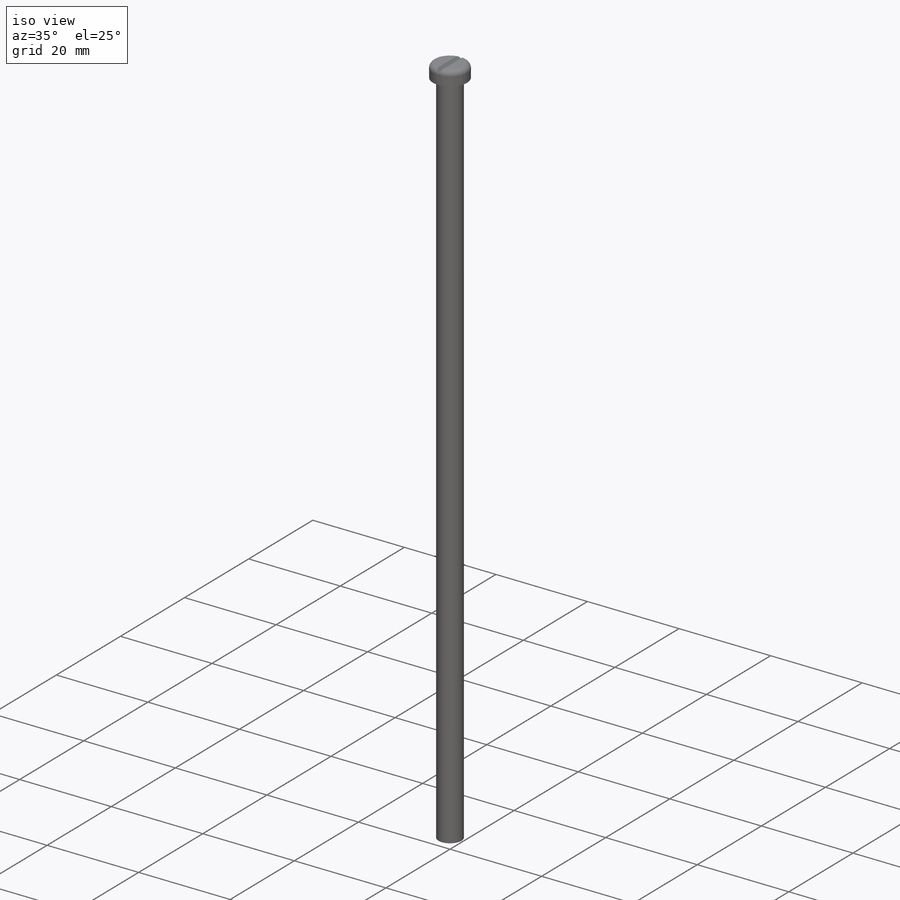
[diagram: iso view]
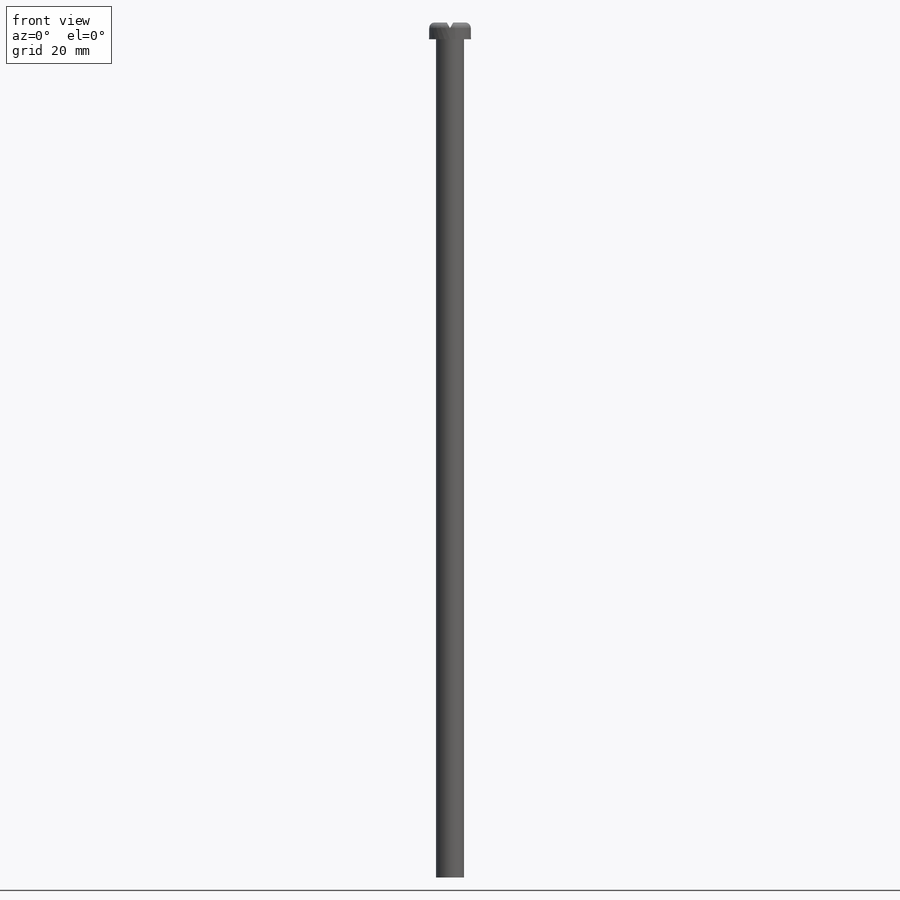
[diagram: front view]
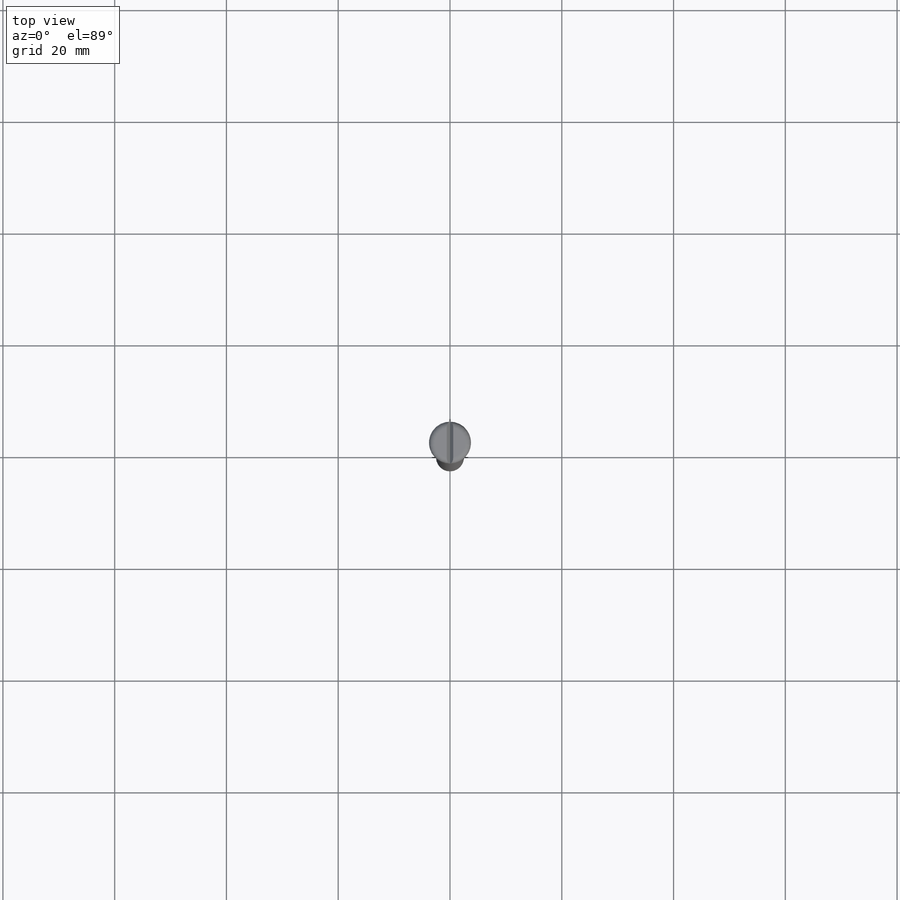
[diagram: top view]
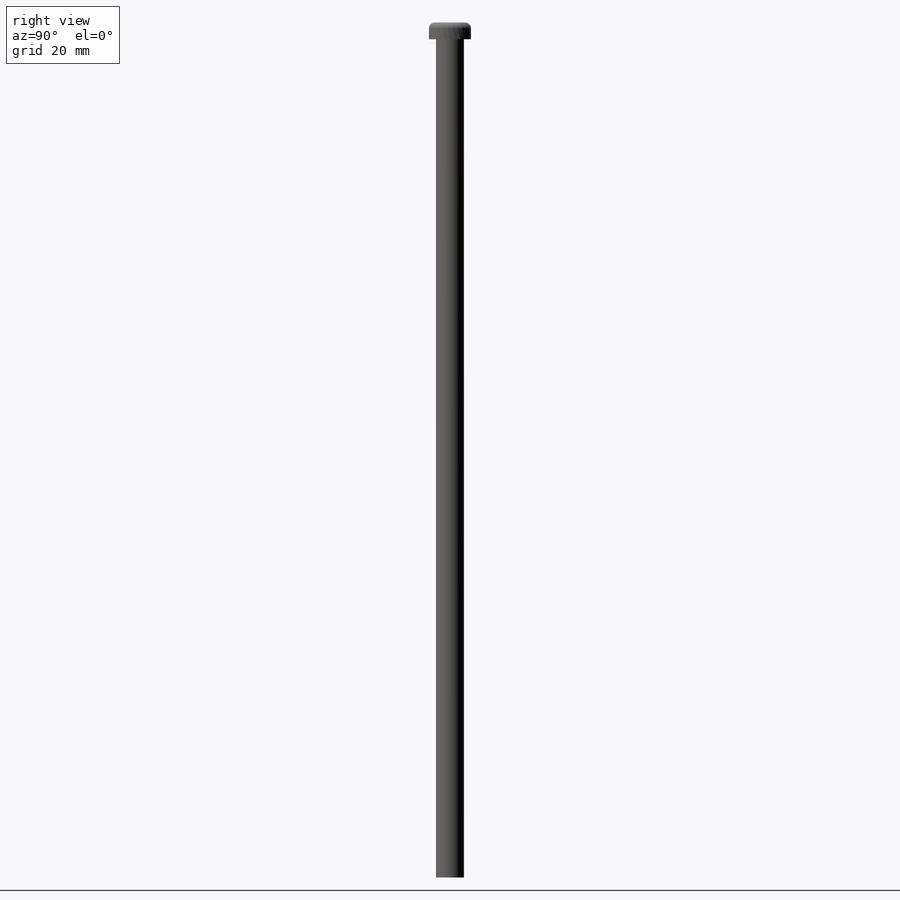
[diagram: right view]
SOLIDWORKS PART (.sldprt)
format: sldprt  version: not decoded by parser v0  size: 148,992 bytes
history: native  units: mm
features: sketch x3, extrude x2, fillet x2, material x1, cut_extrude x1 (+13 scaffold rows collapsed)
feature tree (22):
  scaffold x13  (default folders/planes/origin — collapsed)
  material  "Material <not specified>"
  sketch  "Sketch1"  dims[D1=5.0mm]
  extrude  "Boss-Extrude1"  Depth=150mm
  sketch  "Sketch2"  dims[D1=7.5mm]
  extrude  "Boss-Extrude2"  Depth=3mm
  fillet  "Fillet1"  Radius=1mm
  sketch  "Sketch4"  dims[c1.D1=~1.234215mm c2.D1=60.0deg]
  cut_extrude  "Cut-Extrude1"  Depth=10mm
  fillet  "Fillet2"  Radius=0.5mm
decode coverage: 8 of 8 modeling features carry decoded parameters
note: ~ marks probable driven/reference dimensions
note: suppression state not decoded; provenance and decode notes live in map.json
